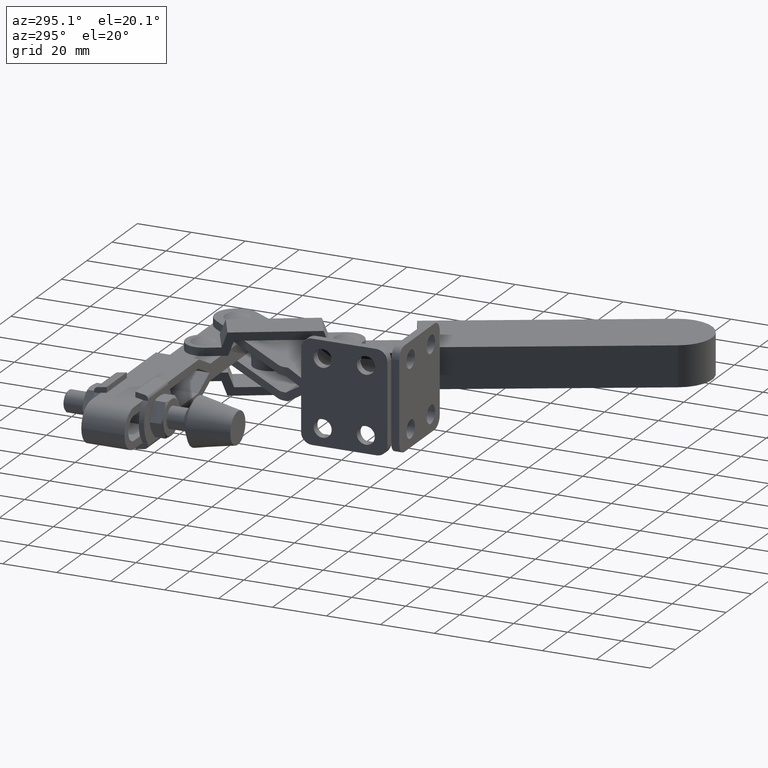
[diagram: clean part render]
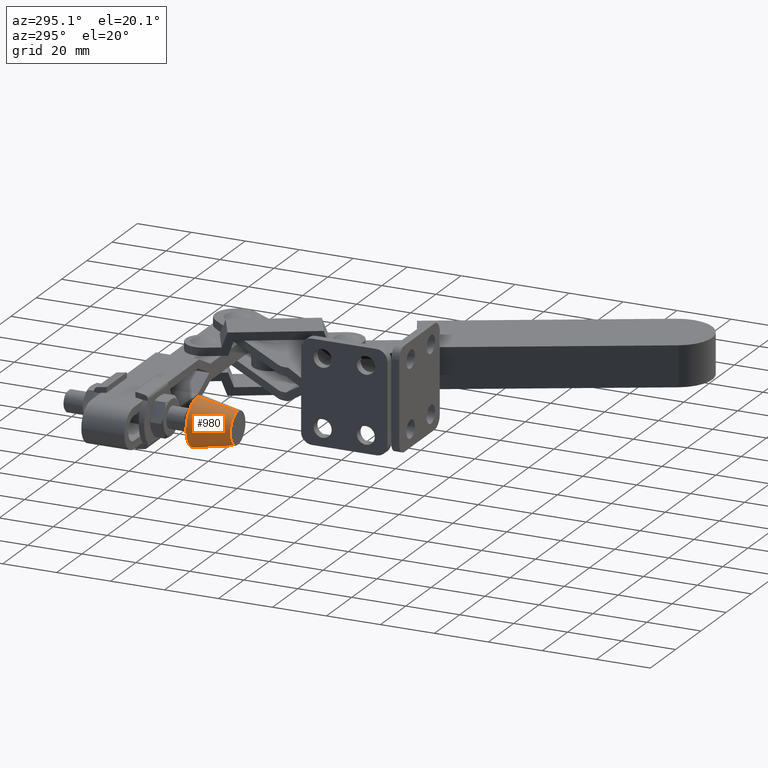
[diagram: same view with one face highlighted and labeled with its STEP entity id]
A machine part, auxiliary view. The second image highlights one B-rep face of the part: STEP entity #980.
In plain terms, the highlighted conical surface has half-angle 11.31 deg.
Its self-contained STEP definition (entity closure, byte-faithful):
#213 = VERTEX_POINT ( 'NONE', #7831 ) ;
#443 = VERTEX_POINT ( 'NONE', #7019 ) ;
#633 = CARTESIAN_POINT ( 'NONE',  ( -42.52308638896531800, 53.49999999999953800, -5.540706782269921900E-012 ) ) ;
#850 = ORIENTED_EDGE ( 'NONE', *, *, #5432, .F. ) ;
#877 = DIRECTION ( 'NONE',  ( -0.0000000000000000000, -1.000000000000000000, -0.0000000000000000000 ) ) ;
#885 = AXIS2_PLACEMENT_3D ( 'NONE', #633, #8813, #1180 ) ;
#980 = ADVANCED_FACE ( 'NONE', ( #8198 ), #7520, .T. ) ;
#1113 = LINE ( 'NONE', #6008, #6920 ) ;
#1150 = DIRECTION ( 'NONE',  ( 0.0000000000000000000, 0.0000000000000000000, 1.000000000000000000 ) ) ;
#1180 = DIRECTION ( 'NONE',  ( 0.0000000000000000000, 0.0000000000000000000, -1.000000000000000000 ) ) ;
#1813 = CIRCLE ( 'NONE', #885, 9.000000000000000000 ) ;
#1860 = EDGE_CURVE ( 'NONE', #213, #443, #1113, .T. ) ;
#3033 = ORIENTED_EDGE ( 'NONE', *, *, #7104, .F. ) ;
#3365 = ORIENTED_EDGE ( 'NONE', *, *, #8662, .T. ) ;
#3971 = DIRECTION ( 'NONE',  ( 2.401729971581267900E-017, 0.9805806756909202200, -0.1961161351381839900 ) ) ;
#4276 = DIRECTION ( 'NONE',  ( 0.0000000000000000000, 1.000000000000000000, 0.0000000000000000000 ) ) ;
#4827 = VERTEX_POINT ( 'NONE', #5185 ) ;
#5185 = CARTESIAN_POINT ( 'NONE',  ( -42.52308638896531800, 53.49999999999953800, -9.000000000005540500 ) ) ;
#5432 = EDGE_CURVE ( 'NONE', #213, #8814, #5617, .T. ) ;
#5617 = CIRCLE ( 'NONE', #8446, 6.000000000000000000 ) ;
#6001 = DIRECTION ( 'NONE',  ( 0.0000000000000000000, 0.0000000000000000000, -1.000000000000000000 ) ) ;
#6008 = CARTESIAN_POINT ( 'NONE',  ( -42.52308638896531800, 38.49999999999953800, 5.999999999994459500 ) ) ;
#6166 = CARTESIAN_POINT ( 'NONE',  ( -42.52308638896531800, 38.49999999999953800, -6.000000000005540500 ) ) ;
#6231 = ORIENTED_EDGE ( 'NONE', *, *, #1860, .T. ) ;
#6291 = EDGE_LOOP ( 'NONE', ( #3033, #850, #6231, #3365 ) ) ;
#6920 = VECTOR ( 'NONE', #7405, 1000.000000000000000 ) ;
#6999 = LINE ( 'NONE', #6166, #8943 ) ;
#7019 = CARTESIAN_POINT ( 'NONE',  ( -42.52308638896531800, 53.49999999999953800, 8.999999999994457800 ) ) ;
#7104 = EDGE_CURVE ( 'NONE', #8814, #4827, #6999, .T. ) ;
#7405 = DIRECTION ( 'NONE',  ( 0.0000000000000000000, 0.9805806756909202200, 0.1961161351381839900 ) ) ;
#7520 = CONICAL_SURFACE ( 'NONE', #9433, 6.000000000000000000, 0.1973955598498806600 ) ;
#7831 = CARTESIAN_POINT ( 'NONE',  ( -42.52308638896531800, 38.49999999999953800, 5.999999999994459500 ) ) ;
#8198 = FACE_OUTER_BOUND ( 'NONE', #6291, .T. ) ;
#8418 = CARTESIAN_POINT ( 'NONE',  ( -42.52308638896531800, 38.49999999999953800, -6.000000000005540500 ) ) ;
#8446 = AXIS2_PLACEMENT_3D ( 'NONE', #9029, #877, #6001 ) ;
#8662 = EDGE_CURVE ( 'NONE', #443, #4827, #1813, .T. ) ;
#8813 = DIRECTION ( 'NONE',  ( -0.0000000000000000000, -1.000000000000000000, -0.0000000000000000000 ) ) ;
#8814 = VERTEX_POINT ( 'NONE', #8418 ) ;
#8943 = VECTOR ( 'NONE', #3971, 1000.000000000000000 ) ;
#9029 = CARTESIAN_POINT ( 'NONE',  ( -42.52308638896531800, 38.49999999999953800, -5.540706782269921900E-012 ) ) ;
#9031 = CARTESIAN_POINT ( 'NONE',  ( -42.52308638896531800, 38.49999999999953800, -5.540706782269921900E-012 ) ) ;
#9433 = AXIS2_PLACEMENT_3D ( 'NONE', #9031, #4276, #1150 ) ;